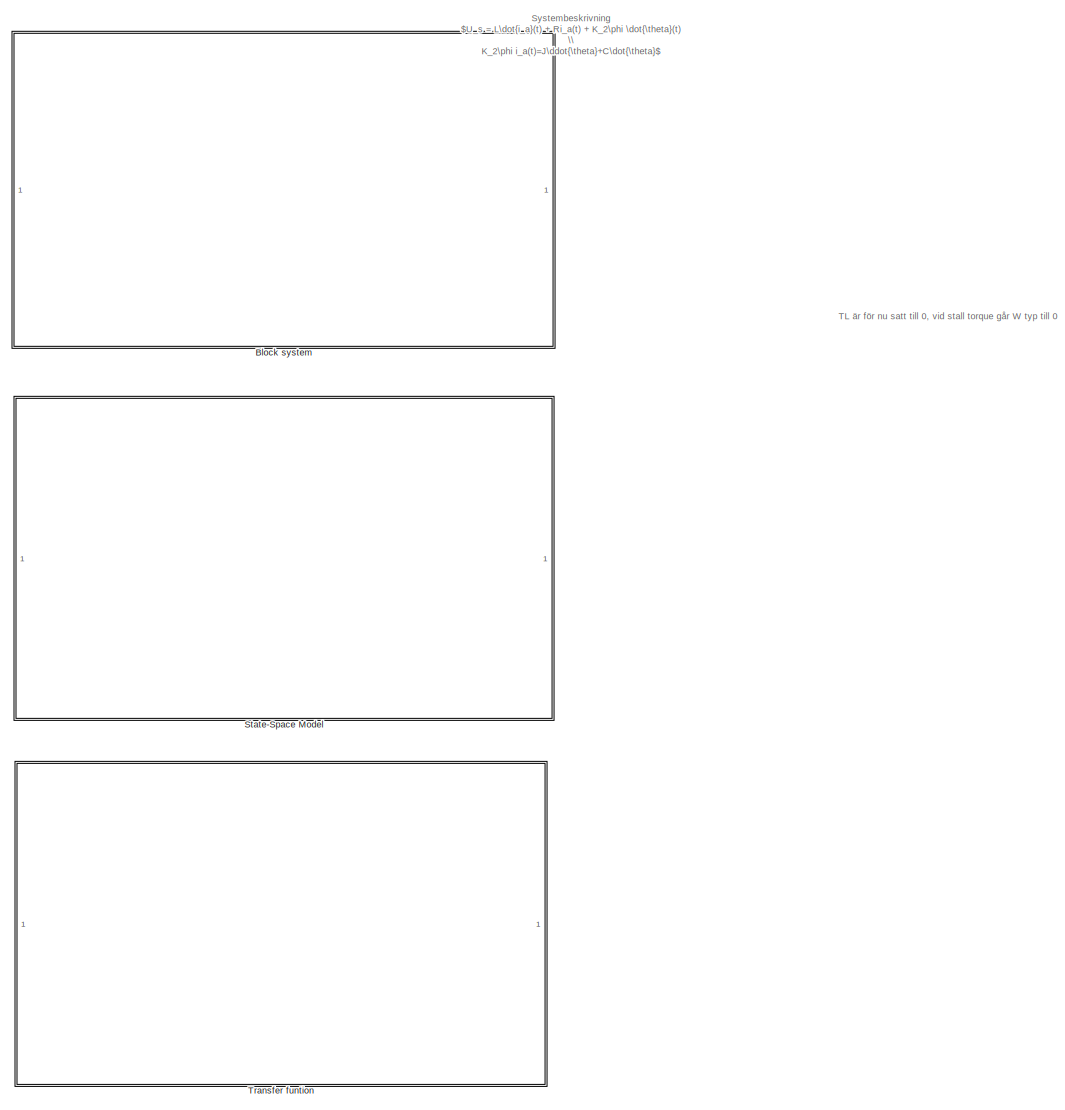
[diagram: root canvas - part 1/5, full width, top band]
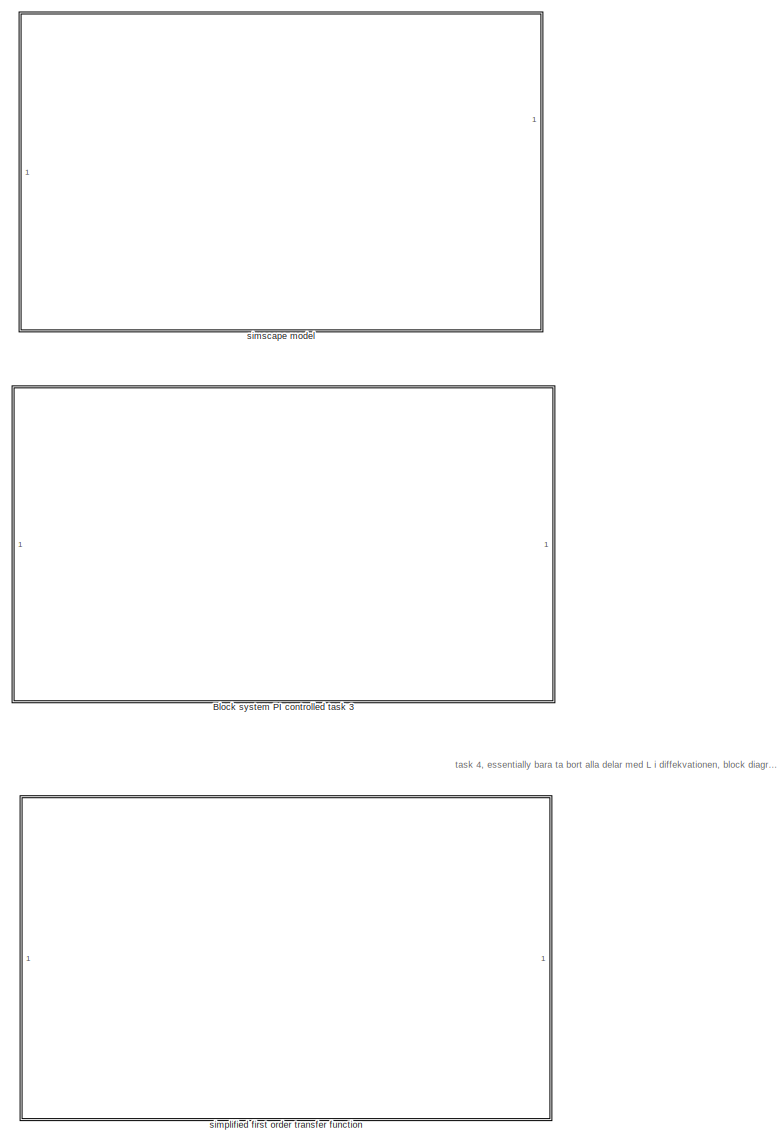
[diagram: root canvas - part 2/5, top center region]
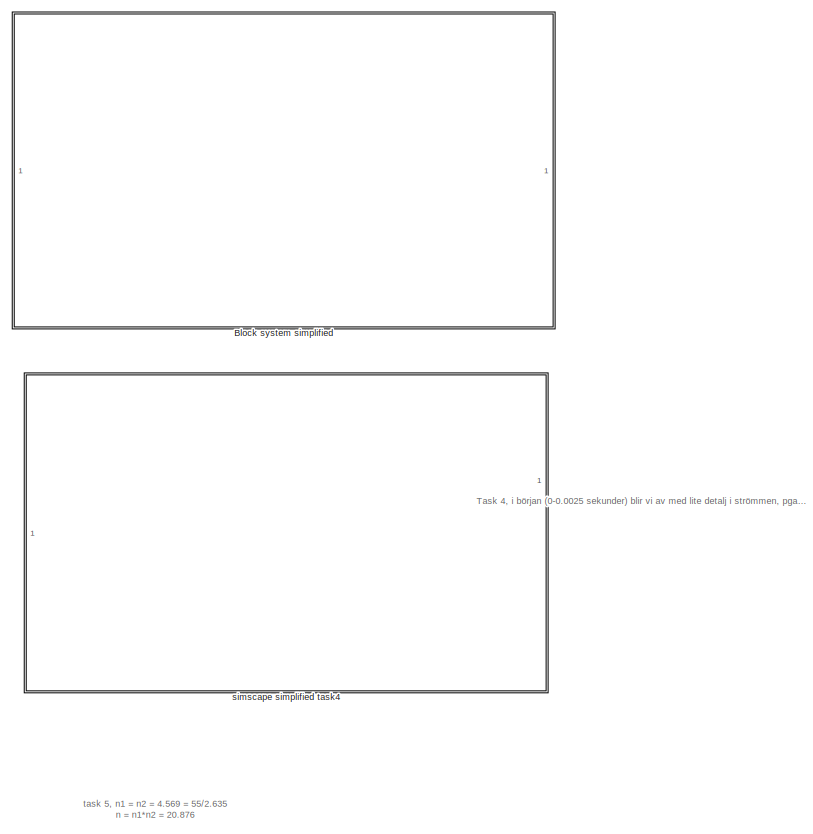
[diagram: root canvas - part 3/5, full width, middle band]
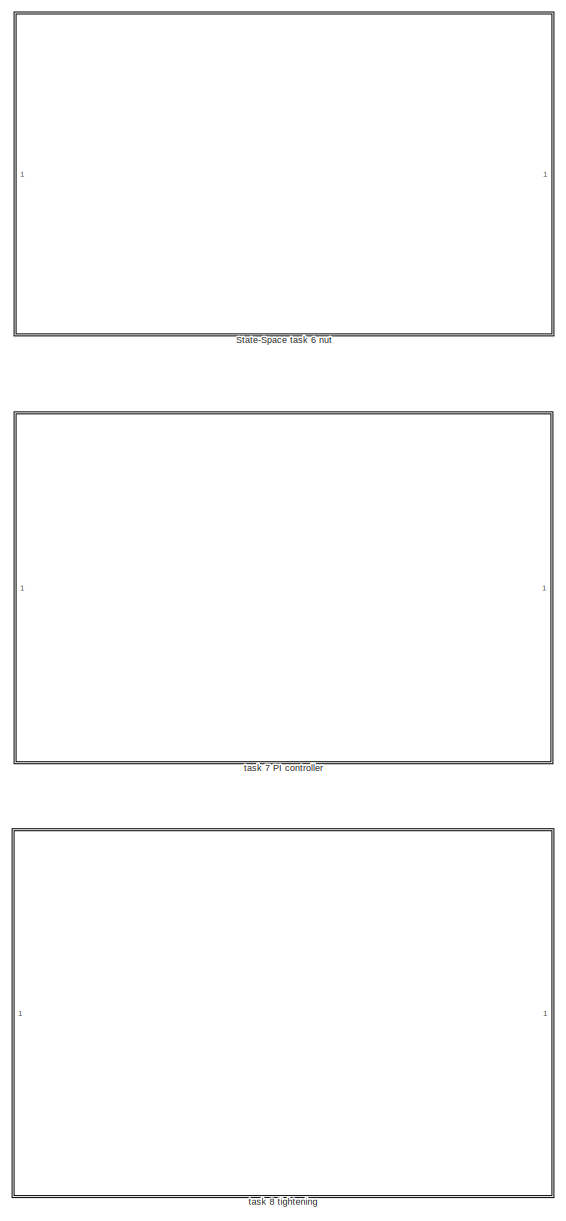
[diagram: root canvas - part 4/5, bottom left region]
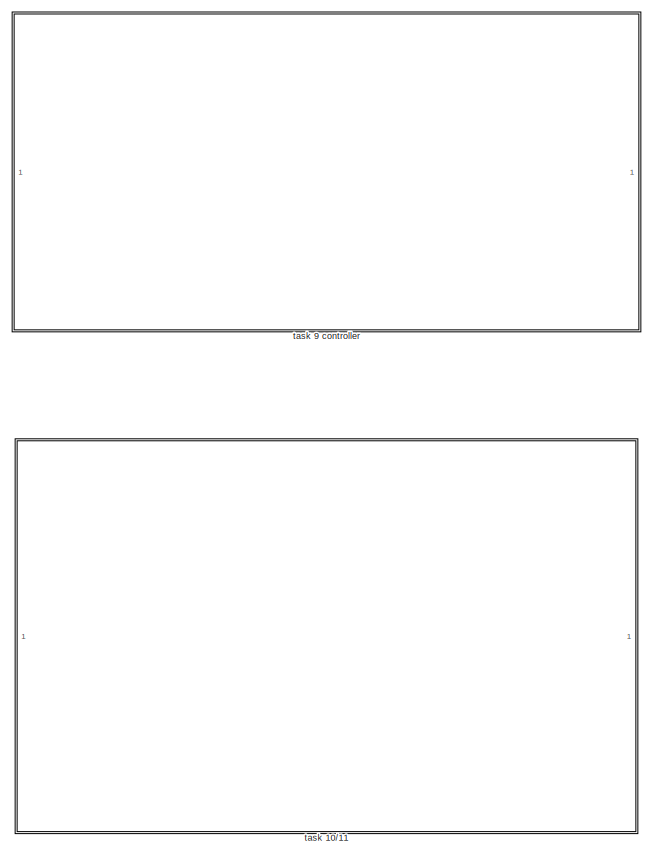
[diagram: root canvas - part 5/5, bottom left region]
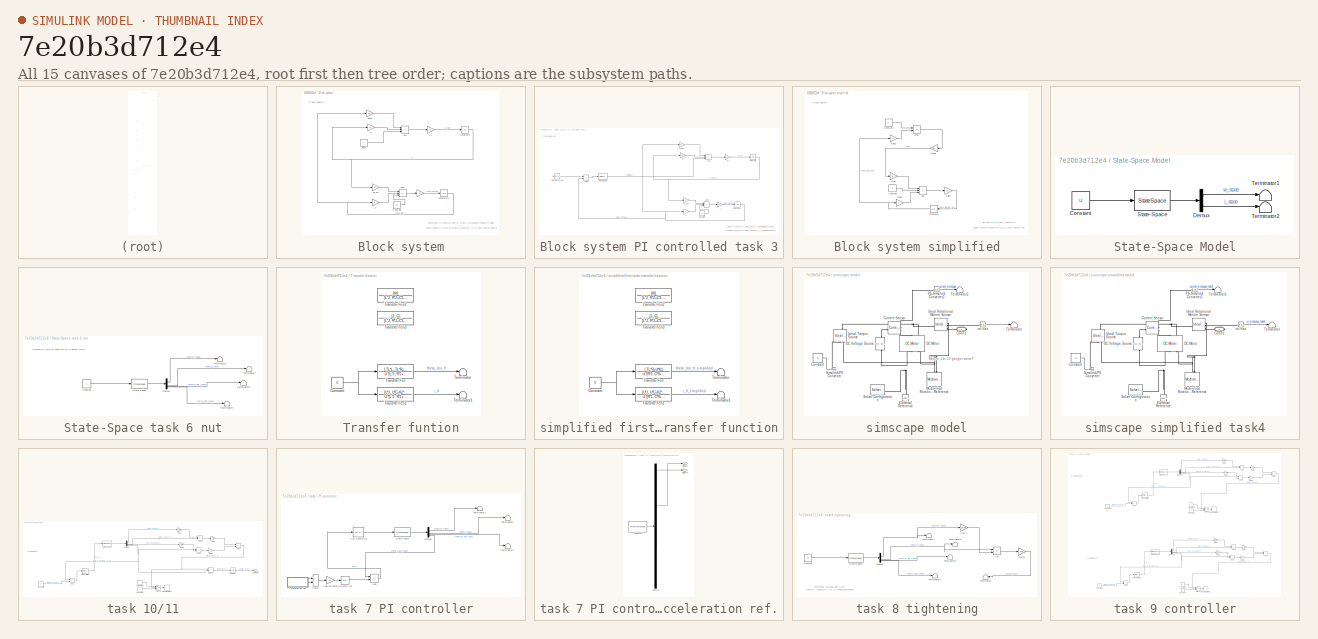
[diagram: thumbnail index - all 15 canvases of the model, root first then tree order]
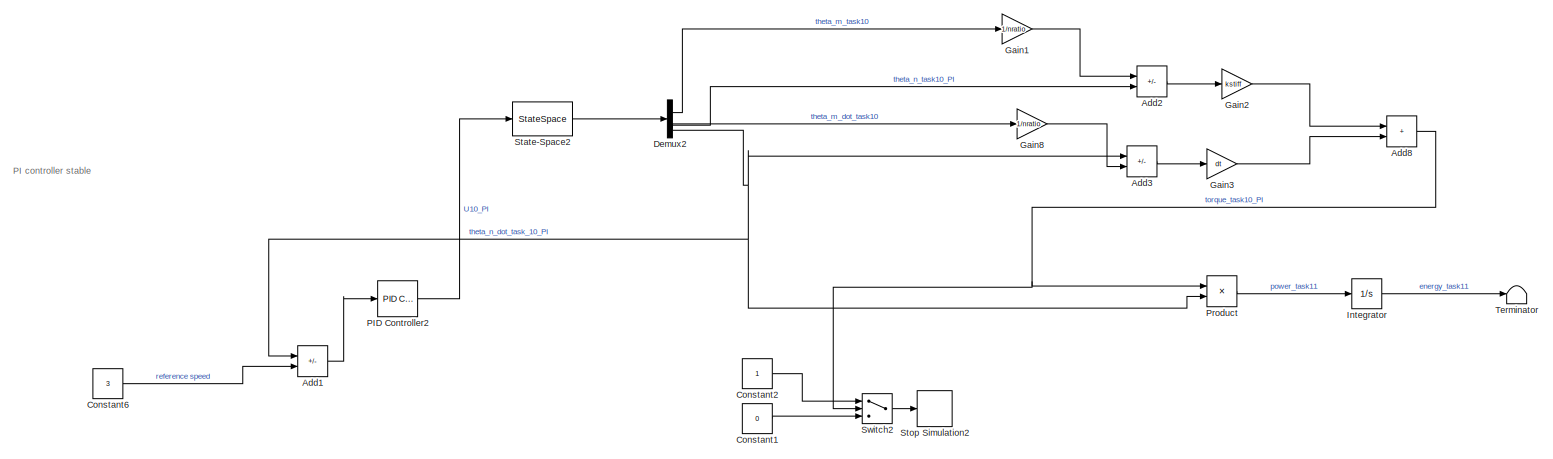
[diagram: task 10/11 - part 1/1, most of the canvas]
MODEL slx_7e20b3d712e4
KIND model
CONFIG AbsTol = auto
CONFIG EnableMultiTasking = off
CONFIG FixedStep = auto
CONFIG MaxStep = auto
CONFIG MinStep = auto
CONFIG RelTol = 1e-3
CONFIG SampleTimeConstraint = Unconstrained
CONFIG SolverName = VariableStepAuto
CONFIG StartTime = 0.0
CONFIG StopTime = 10
WORKSPACE source: MATLAB code (in-file)
WORKSPACE R = 0.22
WORKSPACE K2 = 2.53*10^(-3)*(60/(2*pi))  (= 0.0241597203613)
WORKSPACE C = 7.72*10^(-7)*(60/(2*pi))  (= 7.37205696402e-06)
WORKSPACE L = 73*10^(-6)  (= 7.3e-05)
WORKSPACE J = 1.3*10^(-5)  (= 1.3e-05)
WORKSPACE Kt = 24.2*10^(-3)  (= 0.0242)
WORKSPACE U = 24
WORKSPACE TL = 0
WORKSPACE reference_rpm_task3 = 12
WORKSPACE dj = 1.5
WORKSPACE dt = 1.5
WORKSPACE kstiff = 739
WORKSPACE Jn = 6.5*10^(-8)  (= 6.5e-08)
WORKSPACE n1ratio = 4.569
WORKSPACE nratio = n1ratio*n1ratio  (= 20.875761)
WORKSPACE Jg1 = 6.5*10^(-8)  (= 6.5e-08)
WORKSPACE Jg2 = 5.3*10^(-8)  (= 5.3e-08)
WORKSPACE J1 = J+Jg1+Jg2/nratio  (= 1.30675388296e-05)
WORKSPACE J2 = 533*10^(-8)  (= 5.33e-06)
WORKSPACE Kf = 7.72*10^(-7)*(60/(2*pi))  (= 7.37205696402e-06)
WORKSPACE Amatr = [0, 0, 1, 0
WORKSPACE code: 0, 0, 0, 1;
WORKSPACE code: -kstiff/(J1*nratio^2), kstiff/(J1*nratio), -dt/(J1*nratio^2) - (Kt*K2)/(R*J1) - Kf/J1, dt/(J1*nratio);
WORKSPACE code: kstiff/(J2*nratio), -kstiff/J2, dt/(J2*nratio), -dt/J2 - dj/J2];
WORKSPACE code: Bmatr = [0; 0; Kt/(R*J1); 0];
WORKSPACE Cmatr = eye(4)
WORKSPACE code: Dmatr = [0;0;0;0];
WORKSPACE kj = 6.895*10^7  (= 68950000)
WORKSPACE factor = (1.25*10^(-3))^2 / (4*pi^2)  (= 3.95785873603e-08)
WORKSPACE Amatr8 = [0, 0, 1, 0
WORKSPACE code: 0, 0, 0, 1;
WORKSPACE code: -kstiff/(J1*nratio^2), kstiff/(J1*nratio), -dt/(J1*nratio^2) - (Kt*K2)/(R*J1) - Kf/J1, dt/(J1*nratio);
WORKSPACE code: kstiff/(J2*nratio), -kstiff/(J2) - kj*factor/(J2), dt/(nratio*J2), -dt/(J2) - dj/J2];
WORKSPACE code: Bmatr8 = [0; 0; Kt/(R*J1); 0];
WORKSPACE Cmatr8 = eye(4)
WORKSPACE code: Dmatr8 = [0;0;0;0];
WORKSPACE mu10 = 0.125
WORKSPACE rs10 = 6.466*10^(-3)  (= 0.006466)
WORKSPACE factorsqrt = (1.25*10^(-3)) / (2*pi)  (= 0.000198943678865)
WORKSPACE Amatr10 = [0, 0, 1, 0
WORKSPACE code: 0, 0, 0, 1;
WORKSPACE code: -kstiff/(J1*nratio^2), kstiff/(J1*nratio), -dt/(J1*nratio^2) - (Kt*K2)/(R*J1) - Kf/J1, dt/(J1*nratio);
WORKSPACE code: kstiff/(J2*nratio), -kstiff/(J2) - kj*factor/(J2) - (mu10*kj*factorsqrt*rs10)/(J2), dt/(nratio*J2), -dt/(J2) - dj/J2];
WORKSPACE code: Bmatr10 = [0; 0; Kt/(R*J1); 0];
WORKSPACE Cmatr10 = eye(4)
WORKSPACE code: Dmatr10 = [0;0;0;0];
BLOCK [SubSystem] Block system
BLOCK [SubSystem] Block system PI controlled task 3
BLOCK [Gain] Block system PI controlled task 3/1//L
  Gain = 1/L
BLOCK [Sum] Block system PI controlled task 3/Add
  IconShape = rectangular
  Inputs = --+
BLOCK [Sum] Block system PI controlled task 3/Add1
  IconShape = rectangular
  Inputs = +--
BLOCK [Sum] Block system PI controlled task 3/Add2
  IconShape = rectangular
  Inputs = +-
BLOCK [Gain] Block system PI controlled task 3/C
  Gain = C
BLOCK [Constant] Block system PI controlled task 3/Constant
  Value = TL
BLOCK [Integrator] Block system PI controlled task 3/Integrator
BLOCK [Integrator] Block system PI controlled task 3/Integrator1
BLOCK [Gain] Block system PI controlled task 3/J
  Gain = 1/J
BLOCK [Gain] Block system PI controlled task 3/K2_phi
  Gain = Kt
BLOCK [Gain] Block system PI controlled task 3/K2phi
  Gain = K2
BLOCK [Reference] Block system PI controlled task 3/PID Controller  REF=slpidlib/PID Controller
  LibrarySourceBlock = simulink/Continuous/PID Controller
  SourceBlock = slpidlib/PID Controller
  SourceType = PID 1dof
BLOCK [Gain] Block system PI controlled task 3/R
  Gain = R
BLOCK [Constant] Block system PI controlled task 3/reference_rpm
  Value = reference_rpm_task3
BLOCK [SubSystem] Block system simplified
BLOCK [Sum] Block system simplified/Add
  IconShape = rectangular
  Inputs = +--
BLOCK [Sum] Block system simplified/Add1
  IconShape = rectangular
  Inputs = +-
BLOCK [Constant] Block system simplified/Constant
  Value = TL
BLOCK [Constant] Block system simplified/Constant1
  Value = U
BLOCK [Gain] Block system simplified/Gain
  Gain = Kt
BLOCK [Gain] Block system simplified/Gain1
  Gain = C
BLOCK [Gain] Block system simplified/Gain2
  Gain = 1/J
BLOCK [Gain] Block system simplified/Gain3
  Gain = K2
BLOCK [Gain] Block system simplified/Gain4
  Gain = 1/R
BLOCK [Integrator] Block system simplified/Integrator
BLOCK [Gain] Block system/1//L
  Gain = 1/L
BLOCK [Sum] Block system/Add
  IconShape = rectangular
  Inputs = --+
BLOCK [Sum] Block system/Add1
  IconShape = rectangular
  Inputs = +--
BLOCK [Gain] Block system/C
  Gain = C
BLOCK [Constant] Block system/Constant
  Value = TL
BLOCK [Integrator] Block system/Integrator
BLOCK [Integrator] Block system/Integrator1
BLOCK [Gain] Block system/J
  Gain = 1/J
BLOCK [Gain] Block system/K2_phi
  Gain = Kt
BLOCK [Gain] Block system/K2phi
  Gain = K2
BLOCK [Gain] Block system/R
  Gain = R
BLOCK [Constant] Block system/input
  Value = U
BLOCK [SubSystem] State-Space Model
BLOCK [Constant] State-Space Model/Constant
  Value = U
BLOCK [Demux] State-Space Model/Demux
  Outputs = 2
BLOCK [StateSpace] State-Space Model/State-Space
  A = [-C/J, Kt/J; -K2/L, -R/L]
  B = [-TL/(J*U); 1/L]
  C = [1, 0; 0 1]
  D = [0;0]
  InitialCondition = 0
BLOCK [Terminator] State-Space Model/Terminator1
BLOCK [Terminator] State-Space Model/Terminator2
BLOCK [SubSystem] State-Space task 6 nut
BLOCK [Constant] State-Space task 6 nut/Constant
BLOCK [Demux] State-Space task 6 nut/Demux
BLOCK [StateSpace] State-Space task 6 nut/State-Space
  A = Amatr
  B = Bmatr
  C = Cmatr
  D = Dmatr
  InitialCondition = 0
BLOCK [Terminator] State-Space task 6 nut/Terminator1
BLOCK [Terminator] State-Space task 6 nut/Terminator2
BLOCK [Terminator] State-Space task 6 nut/Terminator3
BLOCK [Terminator] State-Space task 6 nut/Terminator4
BLOCK [SubSystem] Transfer funtion
BLOCK [Constant] Transfer funtion/Constant
  Value = U
BLOCK [Terminator] Transfer funtion/Terminator
BLOCK [Terminator] Transfer funtion/Terminator1
BLOCK [TransferFcn] Transfer funtion/Transfer Fcn
  Denominator = U.*[L*J, R*J+C*L, C*R+K2*Kt]
  Numerator = [-TL*L,-TL*R+U*Kt]
BLOCK [TransferFcn] Transfer funtion/Transfer Fcn1
  Denominator = U.*[L*J, R*J+C*L, C*R+K2*Kt]
  Numerator = [U*J, U*C+K2*TL]
BLOCK [TransferFcn] Transfer funtion/Transfer Fcn2
  Commented = on
  Denominator = [L*J, R*J+C*L, C*R+K2*Kt]
  Numerator = [Kt]
BLOCK [TransferFcn] Transfer funtion/Transfer Fcn3
  Commented = on
  Denominator = [L*J, R*J+C*L, C*R+K2*Kt]
  Numerator = [J, C]
BLOCK [SubSystem] simplified first order transfer function
BLOCK [Constant] simplified first order transfer function/Constant
  Value = U
BLOCK [Terminator] simplified first order transfer function/Terminator
BLOCK [Terminator] simplified first order transfer function/Terminator1
BLOCK [TransferFcn] simplified first order transfer function/Transfer Fcn
  Denominator = U.*[R*J, C*R+K2*Kt]
  Numerator = [-TL*R+U*Kt]
BLOCK [TransferFcn] simplified first order transfer function/Transfer Fcn1
  Denominator = U.*[R*J, C*R+K2*Kt]
  Numerator = [U*J, U*C+K2*TL]
BLOCK [TransferFcn] simplified first order transfer function/Transfer Fcn2
  Commented = on
  Denominator = [L*J, R*J+C*L, C*R+K2*Kt]
  Numerator = [Kt]
BLOCK [TransferFcn] simplified first order transfer function/Transfer Fcn3
  Commented = on
  Denominator = [L*J, R*J+C*L, C*R+K2*Kt]
  Numerator = [J, C]
BLOCK [SubSystem] simscape model
BLOCK [PMIOPort] simscape model/Conn1
  Side = Right
BLOCK [Constant] simscape model/Constant
  Value = -TL
BLOCK [Reference] simscape model/Current Sensor  REF=fl_lib/Electrical/Electrical Sensors/Current Sensor
  SourceBlock = fl_lib/Electrical/Electrical Sensors/Current Sensor
  SourceType = Current Sensor
BLOCK [Reference] simscape model/DC Motor  REF=ee_lib/Electromechanical/Brushed Motors/DC Motor
  NameLocation = right
  SourceBlock = ee_lib/Electromechanical/Brushed Motors/DC Motor
  SourceType = DC Motor
BLOCK [Reference] simscape model/DC Voltage Source  REF=fl_lib/Electrical/Electrical Sources/DC Voltage Source
  NameLocation = right
  SourceBlock = fl_lib/Electrical/Electrical Sources/DC Voltage Source
  SourceType = DC Voltage Source
BLOCK [Reference] simscape model/Electrical Reference  REF=fl_lib/Electrical/Electrical Elements/Electrical Reference
  NameLocation = right
  SourceBlock = fl_lib/Electrical/Electrical Elements/Electrical Reference
  SourceType = Electrical Reference
BLOCK [Reference] simscape model/Ideal Rotational Motion Sensor  REF=fl_lib/Mechanical/Mechanical Sensors/Ideal Rotational
Motion Sensor
  SourceBlock = fl_lib/Mechanical/Mechanical Sensors/Ideal Rotational\nMotion Sensor
  SourceType = Ideal Rotational\nMotion Sensor
BLOCK [Reference] simscape model/Ideal Torque Source  REF=fl_lib/Mechanical/Mechanical Sources/Ideal Torque Source
  NameLocation = right
  SourceBlock = fl_lib/Mechanical/Mechanical Sources/Ideal Torque Source
  SourceType = Ideal Torque Source
BLOCK [Reference] simscape model/Mechanical Rotational Reference  REF=fl_lib/Mechanical/Rotational Elements/Mechanical
Rotational Reference
  NameLocation = right
  SourceBlock = fl_lib/Mechanical/Rotational Elements/Mechanical\nRotational Reference
  SourceType = Mechanical\nRotational Reference
BLOCK [Reference] simscape model/PS-Simulink Converter2  REF=nesl_utility/PS-Simulink
Converter
  SourceBlock = nesl_utility/PS-Simulink\nConverter
  SourceType = PS-Simulink\nConverter
BLOCK [Reference] simscape model/Simulink-PS Converter  REF=nesl_utility/Simulink-PS
Converter
  SourceBlock = nesl_utility/Simulink-PS\nConverter
  SourceType = Simulink-PS\nConverter
BLOCK [Reference] simscape model/Solver Configuration  REF=nesl_utility/Solver
Configuration
  SourceBlock = nesl_utility/Solver\nConfiguration
  SourceType = Solver\nConfiguration
BLOCK [Terminator] simscape model/Terminator
BLOCK [Terminator] simscape model/Terminator2
BLOCK [Reference] simscape model/rot has  REF=nesl_utility/PS-Simulink
Converter
  SourceBlock = nesl_utility/PS-Simulink\nConverter
  SourceType = PS-Simulink\nConverter
BLOCK [SubSystem] simscape simplified task4
BLOCK [PMIOPort] simscape simplified task4/Conn1
  Side = Right
BLOCK [Constant] simscape simplified task4/Constant
  Value = -TL
BLOCK [Reference] simscape simplified task4/Current Sensor  REF=fl_lib/Electrical/Electrical Sensors/Current Sensor
  SourceBlock = fl_lib/Electrical/Electrical Sensors/Current Sensor
  SourceType = Current Sensor
BLOCK [Reference] simscape simplified task4/DC Motor  REF=ee_lib/Electromechanical/Brushed Motors/DC Motor
  NameLocation = right
  SourceBlock = ee_lib/Electromechanical/Brushed Motors/DC Motor
  SourceType = DC Motor
BLOCK [Reference] simscape simplified task4/DC Voltage Source  REF=fl_lib/Electrical/Electrical Sources/DC Voltage Source
  NameLocation = right
  SourceBlock = fl_lib/Electrical/Electrical Sources/DC Voltage Source
  SourceType = DC Voltage Source
BLOCK [Reference] simscape simplified task4/Electrical Reference  REF=fl_lib/Electrical/Electrical Elements/Electrical Reference
  NameLocation = right
  SourceBlock = fl_lib/Electrical/Electrical Elements/Electrical Reference
  SourceType = Electrical Reference
BLOCK [Reference] simscape simplified task4/Ideal Rotational Motion Sensor  REF=fl_lib/Mechanical/Mechanical Sensors/Ideal Rotational
Motion Sensor
  SourceBlock = fl_lib/Mechanical/Mechanical Sensors/Ideal Rotational\nMotion Sensor
  SourceType = Ideal Rotational\nMotion Sensor
BLOCK [Reference] simscape simplified task4/Ideal Torque Source  REF=fl_lib/Mechanical/Mechanical Sources/Ideal Torque Source
  NameLocation = right
  SourceBlock = fl_lib/Mechanical/Mechanical Sources/Ideal Torque Source
  SourceType = Ideal Torque Source
BLOCK [Reference] simscape simplified task4/Mechanical Rotational Reference  REF=fl_lib/Mechanical/Rotational Elements/Mechanical
Rotational Reference
  NameLocation = right
  SourceBlock = fl_lib/Mechanical/Rotational Elements/Mechanical\nRotational Reference
  SourceType = Mechanical\nRotational Reference
BLOCK [Reference] simscape simplified task4/PS-Simulink Converter2  REF=nesl_utility/PS-Simulink
Converter
  SourceBlock = nesl_utility/PS-Simulink\nConverter
  SourceType = PS-Simulink\nConverter
BLOCK [Reference] simscape simplified task4/Simulink-PS Converter  REF=nesl_utility/Simulink-PS
Converter
  SourceBlock = nesl_utility/Simulink-PS\nConverter
  SourceType = Simulink-PS\nConverter
BLOCK [Reference] simscape simplified task4/Solver Configuration  REF=nesl_utility/Solver
Configuration
  SourceBlock = nesl_utility/Solver\nConfiguration
  SourceType = Solver\nConfiguration
BLOCK [Terminator] simscape simplified task4/Terminator
BLOCK [Terminator] simscape simplified task4/Terminator2
BLOCK [Reference] simscape simplified task4/rot has  REF=nesl_utility/PS-Simulink
Converter
  SourceBlock = nesl_utility/PS-Simulink\nConverter
  SourceType = PS-Simulink\nConverter
BLOCK [SubSystem] task 10//11
  Commented = on
BLOCK [Sum] task 10//11/Add1
  IconShape = rectangular
  Inputs = -+
BLOCK [Sum] task 10//11/Add2
  IconShape = rectangular
  Inputs = +-
BLOCK [Sum] task 10//11/Add3
  IconShape = rectangular
  Inputs = -+
BLOCK [Sum] task 10//11/Add8
  IconShape = rectangular
BLOCK [Constant] task 10//11/Constant1
  Value = 0
BLOCK [Constant] task 10//11/Constant2
BLOCK [Constant] task 10//11/Constant6
  Value = 3
BLOCK [Demux] task 10//11/Demux2
BLOCK [Gain] task 10//11/Gain1
  Gain = 1/nratio
BLOCK [Gain] task 10//11/Gain2
  Gain = kstiff
BLOCK [Gain] task 10//11/Gain3
  Gain = dt
BLOCK [Gain] task 10//11/Gain8
  Gain = 1/nratio
BLOCK [Integrator] task 10//11/Integrator
BLOCK [Reference] task 10//11/PID Controller2  REF=slpidlib/PID Controller
  LibrarySourceBlock = simulink/Continuous/PID Controller
  SourceBlock = slpidlib/PID Controller
  SourceType = PID 1dof
BLOCK [Product] task 10//11/Product
BLOCK [StateSpace] task 10//11/State-Space2
  A = Amatr10
  B = Bmatr10
  C = Cmatr10
  D = Dmatr10
  InitialCondition = 0
BLOCK [Stop] task 10//11/Stop Simulation2
BLOCK [Switch] task 10//11/Switch2
  InputSameDT = off
  SaturateOnIntegerOverflow = off
  Threshold = 25
BLOCK [Terminator] task 10//11/Terminator
BLOCK [SubSystem] task 7 PI controller
BLOCK [SubSystem] task 7 PI controller/Acceleration ref.
  ClipboardFcn = sigbuilder_block('clipboard');
  CloseFcn = sigbuilder_block('close');
  ContinueFcn = sigbuilder_block('continue')
  CopyFcn = sigbuilder_block('copy');
  DeleteFcn = sigbuilder_block('delete');
  LoadFcn = sigbuilder_block('load');
  MaskHideContents = on
  ModelCloseFcn = sigbuilder_block('modelClose');
  NameChangeFcn = sigbuilder_block('namechange');
  OpenFcn = sigbuilder_block('open',[214.5 141.75 550.5 399.25 ]);
  PauseFcn = sigbuilder_block('pause')
  PreSaveFcn = sigbuilder_block('preSave');
  StartFcn = sigbuilder_block('start');
  StopFcn = sigbuilder_block('stop');
  Tag = STV Subsys
BLOCK [Demux] task 7 PI controller/Acceleration ref./Demux
  DisplayOption = none
  Outputs = 2
  Tag = STV Demux
BLOCK [FromWorkspace] task 7 PI controller/Acceleration ref./FromWs
  Tag = STV FromWs
  VariableName = tuvar
BLOCK [Outport] task 7 PI controller/Acceleration ref./Signal 1
  Tag = STV Outport
BLOCK [Outport] task 7 PI controller/Acceleration ref./Signal 2
  Port = 2
  Tag = STV Outport
BLOCK [Sum] task 7 PI controller/Add
  IconShape = rectangular
  Inputs = -+
BLOCK [Demux] task 7 PI controller/Demux
BLOCK [Reference] task 7 PI controller/PID Controller  REF=slpidlib/PID Controller
  LibrarySourceBlock = simulink/Continuous/PID Controller
  SourceBlock = slpidlib/PID Controller
  SourceType = PID 1dof
BLOCK [Gain] task 7 PI controller/Scaling factor
  Gain = 15
BLOCK [StateSpace] task 7 PI controller/State-Space
  A = Amatr
  B = Bmatr
  C = Cmatr
  D = Dmatr
  InitialCondition = 0
BLOCK [Sum] task 7 PI controller/Sum2
  IconShape = rectangular
  Inputs = |++
BLOCK [Terminator] task 7 PI controller/Terminator1
BLOCK [Terminator] task 7 PI controller/Terminator2
BLOCK [Terminator] task 7 PI controller/Terminator3
BLOCK [Integrator] task 7 PI controller/Vellocity ref
BLOCK [SubSystem] task 8 tightening
BLOCK [Sum] task 8 tightening/Add
  IconShape = rectangular
  Inputs = +-
BLOCK [Constant] task 8 tightening/Constant
  Value = 24
BLOCK [Demux] task 8 tightening/Demux
BLOCK [Gain] task 8 tightening/Gain
  Gain = 1/nratio
BLOCK [Gain] task 8 tightening/Gain1
  Gain = kstiff
BLOCK [StateSpace] task 8 tightening/State-Space
  A = Amatr8
  B = Bmatr8
  C = Cmatr8
  D = Dmatr8
  InitialCondition = 0
BLOCK [Terminator] task 8 tightening/Terminator
BLOCK [Terminator] task 8 tightening/Terminator1
BLOCK [Terminator] task 8 tightening/Terminator2
BLOCK [Terminator] task 8 tightening/Terminator3
BLOCK [Terminator] task 8 tightening/Terminator4
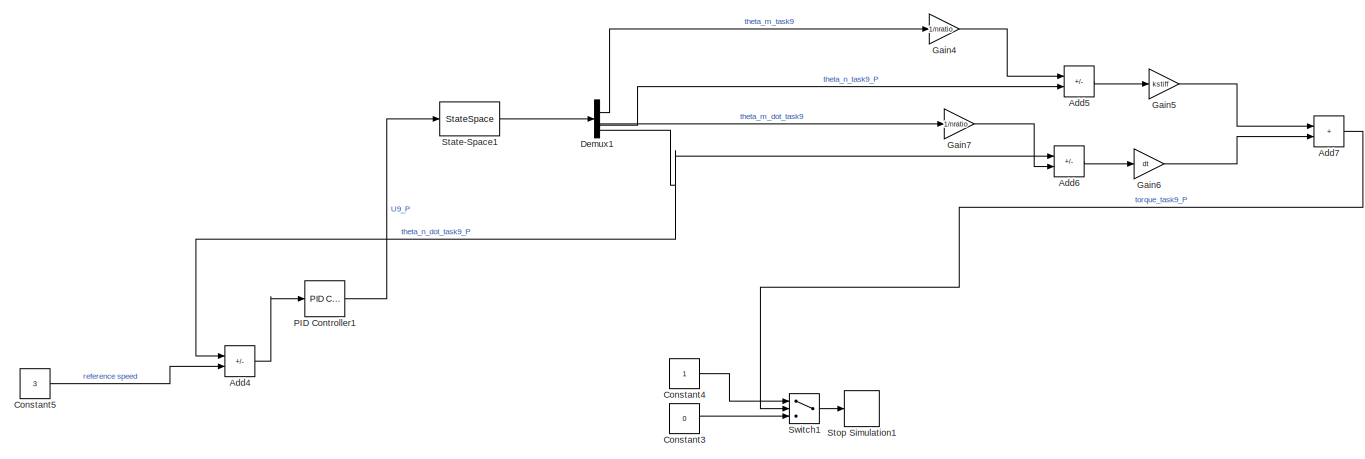
[diagram: task 9 controller - part 1/3, full width, top band]
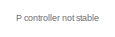
[diagram: task 9 controller - part 2/3, top left region]
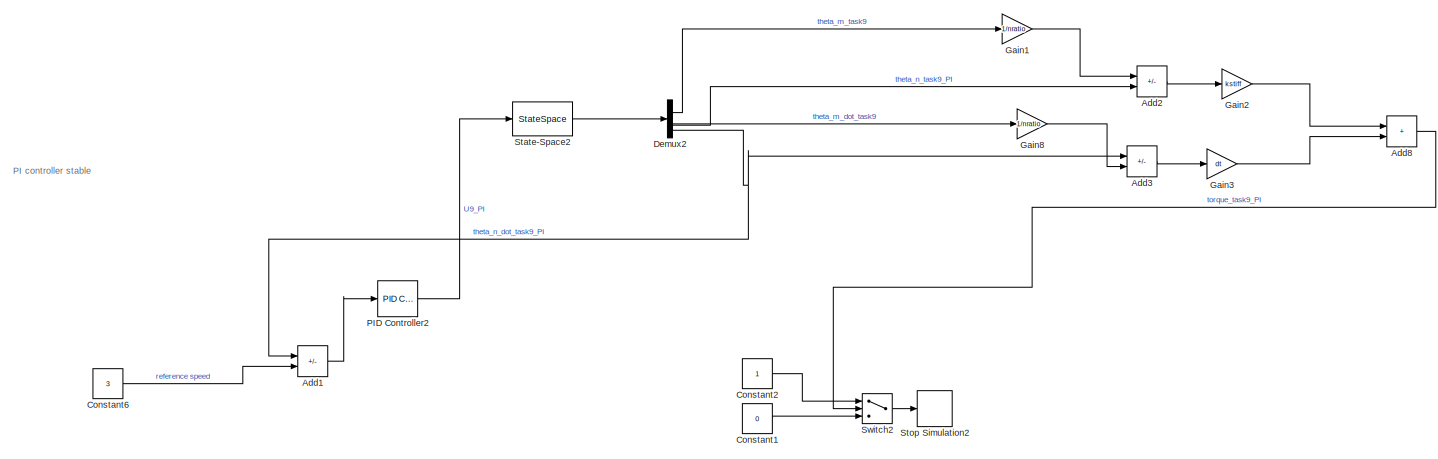
[diagram: task 9 controller - part 3/3, full width, bottom band]
BLOCK [SubSystem] task 9 controller
  Commented = on
BLOCK [Sum] task 9 controller/Add1
  IconShape = rectangular
  Inputs = -+
BLOCK [Sum] task 9 controller/Add2
  IconShape = rectangular
  Inputs = +-
BLOCK [Sum] task 9 controller/Add3
  IconShape = rectangular
  Inputs = -+
BLOCK [Sum] task 9 controller/Add4
  Commented = on
  IconShape = rectangular
  Inputs = -+
BLOCK [Sum] task 9 controller/Add5
  Commented = on
  IconShape = rectangular
  Inputs = +-
BLOCK [Sum] task 9 controller/Add6
  Commented = on
  IconShape = rectangular
  Inputs = -+
BLOCK [Sum] task 9 controller/Add7
  Commented = on
  IconShape = rectangular
BLOCK [Sum] task 9 controller/Add8
  IconShape = rectangular
BLOCK [Constant] task 9 controller/Constant1
  Value = 0
BLOCK [Constant] task 9 controller/Constant2
BLOCK [Constant] task 9 controller/Constant3
  Commented = on
  Value = 0
BLOCK [Constant] task 9 controller/Constant4
  Commented = on
BLOCK [Constant] task 9 controller/Constant5
  Commented = on
  Value = 3
BLOCK [Constant] task 9 controller/Constant6
  Value = 3
BLOCK [Demux] task 9 controller/Demux1
  Commented = on
BLOCK [Demux] task 9 controller/Demux2
BLOCK [Gain] task 9 controller/Gain1
  Gain = 1/nratio
BLOCK [Gain] task 9 controller/Gain2
  Gain = kstiff
BLOCK [Gain] task 9 controller/Gain3
  Gain = dt
BLOCK [Gain] task 9 controller/Gain4
  Commented = on
  Gain = 1/nratio
BLOCK [Gain] task 9 controller/Gain5
  Commented = on
  Gain = kstiff
BLOCK [Gain] task 9 controller/Gain6
  Commented = on
  Gain = dt
BLOCK [Gain] task 9 controller/Gain7
  Commented = on
  Gain = 1/nratio
BLOCK [Gain] task 9 controller/Gain8
  Gain = 1/nratio
BLOCK [Reference] task 9 controller/PID Controller1  REF=slpidlib/PID Controller
  Commented = on
  LibrarySourceBlock = simulink/Continuous/PID Controller
  SourceBlock = slpidlib/PID Controller
  SourceType = PID 1dof
BLOCK [Reference] task 9 controller/PID Controller2  REF=slpidlib/PID Controller
  LibrarySourceBlock = simulink/Continuous/PID Controller
  SourceBlock = slpidlib/PID Controller
  SourceType = PID 1dof
BLOCK [StateSpace] task 9 controller/State-Space1
  A = Amatr8
  B = Bmatr8
  C = Cmatr8
  Commented = on
  D = Dmatr8
  InitialCondition = 0
BLOCK [StateSpace] task 9 controller/State-Space2
  A = Amatr8
  B = Bmatr8
  C = Cmatr8
  D = Dmatr8
  InitialCondition = 0
BLOCK [Stop] task 9 controller/Stop Simulation1
  Commented = on
BLOCK [Stop] task 9 controller/Stop Simulation2
BLOCK [Switch] task 9 controller/Switch1
  Commented = on
  InputSameDT = off
  SaturateOnIntegerOverflow = off
  Threshold = 25
BLOCK [Switch] task 9 controller/Switch2
  InputSameDT = off
  SaturateOnIntegerOverflow = off
  Threshold = 25
ANNOTATION (root): TL är för nu satt till 0, vid stall torque går W typ till 0
ANNOTATION (root): task 4, essentially bara ta bort alla delar med L i diffekvationen, block diagrammet, tf etc
ANNOTATION (root): task 5, n1 = n2 = 4.569 = 55/2.635 n = n1*n2 = 20.876
ANNOTATION (root): Systembeskrivning $U_s = L\dot{i_a}(t) + Ri_a(t) + K_2\phi \dot{\theta}(t) \\ K_2\phi i_a(t)=J\ddot{\theta}+C\dot{\theta}$
ANNOTATION (root): Task 4, i början (0-0.0025 sekunder) blir vi av med lite detalj i strömmen, pga simplifieringen (vi tog bort L)
ANNOTATION Block system: $\dot{i_a}(t)=\frac{1}{L}\left(U-Ri_a(t)-K_2\phi\dot{\theta}(t)\right) \\ \ddot{\theta}(t)=\frac{1}{J}\left(K_2\phi i_a(t)-T_L-C\dot{\theta}\right)$
ANNOTATION Block system: T1 block diagram
ANNOTATION Block system PI controlled task 3: $\dot{i_a}(t)=\frac{1}{L}\left(U-Ri_a(t)-K_2\phi\dot{\theta}(t)\right) \\ \ddot{\theta}(t)=\frac{1}{J}\left(K_2\phi i_a(t)-T_L-C\dot{\theta}\right)$
ANNOTATION Block system PI controlled task 3: T3 block diagram
ANNOTATION Block system simplified: $i=\frac{U-K_{2}\dot{\theta}}{R} \\ \ddot{\theta}=\frac{k_{t}i-T_{L}-C\dot{\theta}}{J}$
ANNOTATION Block system simplified: T1 block diagram
ANNOTATION State-Space task 6 nut: Värdena blir konstigt negativa? kolla igenom varför
ANNOTATION simscape model: Motorn, J är 10 gånger större?
ANNOTATION task 10//11: PI controller stable
ANNOTATION task 8 tightening: momentet vid hastighet 0 blir (theta_2 - theta_1/n ) * K_t (fjäderkonstanten)
ANNOTATION task 9 controller: P controller not stable
ANNOTATION task 9 controller: PI controller stable
LINE Block system PI controlled task 3/1//L:1 -> Block system PI controlled task 3/Integrator:1
LINE Block system PI controlled task 3/Add1:1 -> Block system PI controlled task 3/J:1
LINE Block system PI controlled task 3/Add2:1 -> Block system PI controlled task 3/PID Controller:1
LINE Block system PI controlled task 3/Add:1 -> Block system PI controlled task 3/1//L:1
LINE Block system PI controlled task 3/C:1 -> Block system PI controlled task 3/Add1:2
LINE Block system PI controlled task 3/Constant:1 -> Block system PI controlled task 3/Add1:3
NET Block system PI controlled task 3/Integrator1:1 -> Block system PI controlled task 3/Add2:2, Block system PI controlled task 3/C:1, Block system PI controlled task 3/K2phi:1
NET Block system PI controlled task 3/Integrator:1 -> Block system PI controlled task 3/K2_phi:1, Block system PI controlled task 3/R:1
LINE Block system PI controlled task 3/J:1 -> Block system PI controlled task 3/Integrator1:1
LINE Block system PI controlled task 3/K2_phi:1 -> Block system PI controlled task 3/Add1:1
LINE Block system PI controlled task 3/K2phi:1 -> Block system PI controlled task 3/Add:1
LINE Block system PI controlled task 3/PID Controller:1 -> Block system PI controlled task 3/Add:3
LINE Block system PI controlled task 3/R:1 -> Block system PI controlled task 3/Add:2
LINE Block system PI controlled task 3/reference_rpm:1 -> Block system PI controlled task 3/Add2:1
LINE Block system simplified/Add1:1 -> Block system simplified/Gain4:1
LINE Block system simplified/Add:1 -> Block system simplified/Gain2:1
LINE Block system simplified/Constant1:1 -> Block system simplified/Add1:1
LINE Block system simplified/Constant:1 -> Block system simplified/Add:2
LINE Block system simplified/Gain1:1 -> Block system simplified/Add:3
LINE Block system simplified/Gain2:1 -> Block system simplified/Integrator:1
LINE Block system simplified/Gain3:1 -> Block system simplified/Add1:2
LINE Block system simplified/Gain4:1 -> Block system simplified/Gain:1
LINE Block system simplified/Gain:1 -> Block system simplified/Add:1
NET Block system simplified/Integrator:1 -> Block system simplified/Gain1:1, Block system simplified/Gain3:1
LINE Block system/1//L:1 -> Block system/Integrator:1
LINE Block system/Add1:1 -> Block system/J:1
LINE Block system/Add:1 -> Block system/1//L:1
LINE Block system/C:1 -> Block system/Add1:2
LINE Block system/Constant:1 -> Block system/Add1:3
NET Block system/Integrator1:1 -> Block system/C:1, Block system/K2phi:1
NET Block system/Integrator:1 -> Block system/K2_phi:1, Block system/R:1
LINE Block system/J:1 -> Block system/Integrator1:1
LINE Block system/K2_phi:1 -> Block system/Add1:1
LINE Block system/K2phi:1 -> Block system/Add:1
LINE Block system/R:1 -> Block system/Add:2
LINE Block system/input:1 -> Block system/Add:3
LINE State-Space Model/Constant:1 -> State-Space Model/State-Space:1
LINE State-Space Model/Demux:1 -> State-Space Model/Terminator1:1
LINE State-Space Model/Demux:2 -> State-Space Model/Terminator2:1
LINE State-Space Model/State-Space:1 -> State-Space Model/Demux:1
LINE State-Space task 6 nut/Constant:1 -> State-Space task 6 nut/State-Space:1
LINE State-Space task 6 nut/Demux:1 -> State-Space task 6 nut/Terminator1:1
LINE State-Space task 6 nut/Demux:2 -> State-Space task 6 nut/Terminator2:1
LINE State-Space task 6 nut/Demux:3 -> State-Space task 6 nut/Terminator3:1
LINE State-Space task 6 nut/Demux:4 -> State-Space task 6 nut/Terminator4:1
LINE State-Space task 6 nut/State-Space:1 -> State-Space task 6 nut/Demux:1
NET Transfer funtion/Constant:1 -> Transfer funtion/Transfer Fcn1:1, Transfer funtion/Transfer Fcn:1
LINE Transfer funtion/Transfer Fcn1:1 -> Transfer funtion/Terminator1:1
LINE Transfer funtion/Transfer Fcn:1 -> Transfer funtion/Terminator:1
NET simplified first order transfer function/Constant:1 -> simplified first order transfer function/Transfer Fcn1:1, simplified first order transfer function/Transfer Fcn:1
LINE simplified first order transfer function/Transfer Fcn1:1 -> simplified first order transfer function/Terminator1:1
LINE simplified first order transfer function/Transfer Fcn:1 -> simplified first order transfer function/Terminator:1
LINE simscape model/Constant:1 -> simscape model/Simulink-PS Converter:1
LINE simscape model/PS-Simulink Converter2:1 -> simscape model/Terminator2:1
LINE simscape model/rot has:1 -> simscape model/Terminator:1
LINE simscape simplified task4/Constant:1 -> simscape simplified task4/Simulink-PS Converter:1
LINE simscape simplified task4/PS-Simulink Converter2:1 -> simscape simplified task4/Terminator2:1
LINE simscape simplified task4/rot has:1 -> simscape simplified task4/Terminator:1
LINE task 10//11/Add1:1 -> task 10//11/PID Controller2:1
LINE task 10//11/Add2:1 -> task 10//11/Gain2:1
LINE task 10//11/Add3:1 -> task 10//11/Gain3:1
NET task 10//11/Add8:1 -> task 10//11/Product:1, task 10//11/Switch2:2
LINE task 10//11/Constant1:1 -> task 10//11/Switch2:3
LINE task 10//11/Constant2:1 -> task 10//11/Switch2:1
LINE task 10//11/Constant6:1 -> task 10//11/Add1:2
LINE task 10//11/Demux2:1 -> task 10//11/Gain1:1
LINE task 10//11/Demux2:2 -> task 10//11/Add2:2
LINE task 10//11/Demux2:3 -> task 10//11/Gain8:1
NET task 10//11/Demux2:4 -> task 10//11/Add1:1, task 10//11/Add3:1, task 10//11/Product:2
LINE task 10//11/Gain1:1 -> task 10//11/Add2:1
LINE task 10//11/Gain2:1 -> task 10//11/Add8:1
LINE task 10//11/Gain3:1 -> task 10//11/Add8:2
LINE task 10//11/Gain8:1 -> task 10//11/Add3:2
LINE task 10//11/Integrator:1 -> task 10//11/Terminator:1
LINE task 10//11/PID Controller2:1 -> task 10//11/State-Space2:1
LINE task 10//11/Product:1 -> task 10//11/Integrator:1
LINE task 10//11/State-Space2:1 -> task 10//11/Demux2:1
LINE task 10//11/Switch2:1 -> task 10//11/Stop Simulation2:1
LINE task 7 PI controller/Acceleration ref.:1 -> task 7 PI controller/Sum2:1
LINE task 7 PI controller/Acceleration ref.:2 -> task 7 PI controller/Sum2:2
LINE task 7 PI controller/Add:1 -> task 7 PI controller/PID Controller:1
LINE task 7 PI controller/Demux:1 -> task 7 PI controller/Terminator1:1
LINE task 7 PI controller/Demux:2 -> task 7 PI controller/Terminator2:1
LINE task 7 PI controller/Demux:3 -> task 7 PI controller/Terminator3:1
LINE task 7 PI controller/Demux:4 -> task 7 PI controller/Add:1
LINE task 7 PI controller/PID Controller:1 -> task 7 PI controller/State-Space:1
LINE task 7 PI controller/Scaling factor:1 -> task 7 PI controller/Vellocity ref:1
LINE task 7 PI controller/State-Space:1 -> task 7 PI controller/Demux:1
LINE task 7 PI controller/Sum2:1 -> task 7 PI controller/Scaling factor:1
LINE task 7 PI controller/Vellocity ref:1 -> task 7 PI controller/Add:2
LINE task 8 tightening/Add:1 -> task 8 tightening/Gain1:1
LINE task 8 tightening/Constant:1 -> task 8 tightening/State-Space:1
NET task 8 tightening/Demux:1 -> task 8 tightening/Gain:1, task 8 tightening/Terminator1:1
NET task 8 tightening/Demux:2 -> task 8 tightening/Add:1, task 8 tightening/Terminator2:1
LINE task 8 tightening/Demux:3 -> task 8 tightening/Terminator3:1
LINE task 8 tightening/Demux:4 -> task 8 tightening/Terminator4:1
LINE task 8 tightening/Gain1:1 -> task 8 tightening/Terminator:1
LINE task 8 tightening/Gain:1 -> task 8 tightening/Add:2
LINE task 8 tightening/State-Space:1 -> task 8 tightening/Demux:1
LINE task 9 controller/Add1:1 -> task 9 controller/PID Controller2:1
LINE task 9 controller/Add2:1 -> task 9 controller/Gain2:1
LINE task 9 controller/Add3:1 -> task 9 controller/Gain3:1
LINE task 9 controller/Add4:1 -> task 9 controller/PID Controller1:1
LINE task 9 controller/Add5:1 -> task 9 controller/Gain5:1
LINE task 9 controller/Add6:1 -> task 9 controller/Gain6:1
LINE task 9 controller/Add7:1 -> task 9 controller/Switch1:2
LINE task 9 controller/Add8:1 -> task 9 controller/Switch2:2
LINE task 9 controller/Constant1:1 -> task 9 controller/Switch2:3
LINE task 9 controller/Constant2:1 -> task 9 controller/Switch2:1
LINE task 9 controller/Constant3:1 -> task 9 controller/Switch1:3
LINE task 9 controller/Constant4:1 -> task 9 controller/Switch1:1
LINE task 9 controller/Constant5:1 -> task 9 controller/Add4:2
LINE task 9 controller/Constant6:1 -> task 9 controller/Add1:2
LINE task 9 controller/Demux1:1 -> task 9 controller/Gain4:1
LINE task 9 controller/Demux1:2 -> task 9 controller/Add5:2
LINE task 9 controller/Demux1:3 -> task 9 controller/Gain7:1
NET task 9 controller/Demux1:4 -> task 9 controller/Add4:1, task 9 controller/Add6:1
LINE task 9 controller/Demux2:1 -> task 9 controller/Gain1:1
LINE task 9 controller/Demux2:2 -> task 9 controller/Add2:2
LINE task 9 controller/Demux2:3 -> task 9 controller/Gain8:1
NET task 9 controller/Demux2:4 -> task 9 controller/Add1:1, task 9 controller/Add3:1
LINE task 9 controller/Gain1:1 -> task 9 controller/Add2:1
LINE task 9 controller/Gain2:1 -> task 9 controller/Add8:1
LINE task 9 controller/Gain3:1 -> task 9 controller/Add8:2
LINE task 9 controller/Gain4:1 -> task 9 controller/Add5:1
LINE task 9 controller/Gain5:1 -> task 9 controller/Add7:1
LINE task 9 controller/Gain6:1 -> task 9 controller/Add7:2
LINE task 9 controller/Gain7:1 -> task 9 controller/Add6:2
LINE task 9 controller/Gain8:1 -> task 9 controller/Add3:2
LINE task 9 controller/PID Controller1:1 -> task 9 controller/State-Space1:1
LINE task 9 controller/PID Controller2:1 -> task 9 controller/State-Space2:1
LINE task 9 controller/State-Space1:1 -> task 9 controller/Demux1:1
LINE task 9 controller/State-Space2:1 -> task 9 controller/Demux2:1
LINE task 9 controller/Switch1:1 -> task 9 controller/Stop Simulation1:1
LINE task 9 controller/Switch2:1 -> task 9 controller/Stop Simulation2:1
PLINE simscape model/Conn1:RConn1 -- simscape model/Ideal Rotational Motion Sensor:RConn3
PLINE simscape model/Current Sensor:LConn1 -- simscape model/DC Voltage Source:LConn1
PLINE simscape model/Current Sensor:RConn1 -- simscape model/PS-Simulink Converter2:LConn1
PLINE simscape model/Current Sensor:RConn2 -- simscape model/DC Motor:LConn1
PNET net1: simscape model/DC Motor:LConn2 -- simscape model/Ideal Rotational Motion Sensor:LConn1 -- simscape model/Ideal Torque Source:LConn1
PNET net2: simscape model/DC Motor:RConn1 -- simscape model/DC Voltage Source:RConn1 -- simscape model/Electrical Reference:LConn1 -- simscape model/Solver Configuration:RConn1
PNET net3: simscape model/DC Motor:RConn2 -- simscape model/Ideal Rotational Motion Sensor:RConn1 -- simscape model/Ideal Torque Source:RConn2 -- simscape model/Mechanical Rotational Reference:LConn1
PLINE simscape model/Ideal Rotational Motion Sensor:RConn2 -- simscape model/rot has:LConn1
PLINE simscape model/Ideal Torque Source:RConn1 -- simscape model/Simulink-PS Converter:RConn1
PLINE simscape simplified task4/Conn1:RConn1 -- simscape simplified task4/Ideal Rotational Motion Sensor:RConn3
PLINE simscape simplified task4/Current Sensor:LConn1 -- simscape simplified task4/DC Voltage Source:LConn1
PLINE simscape simplified task4/Current Sensor:RConn1 -- simscape simplified task4/PS-Simulink Converter2:LConn1
PLINE simscape simplified task4/Current Sensor:RConn2 -- simscape simplified task4/DC Motor:LConn1
PNET net4: simscape simplified task4/DC Motor:LConn2 -- simscape simplified task4/Ideal Rotational Motion Sensor:LConn1 -- simscape simplified task4/Ideal Torque Source:LConn1
PNET net5: simscape simplified task4/DC Motor:RConn1 -- simscape simplified task4/DC Voltage Source:RConn1 -- simscape simplified task4/Electrical Reference:LConn1 -- simscape simplified task4/Solver Configuration:RConn1
PNET net6: simscape simplified task4/DC Motor:RConn2 -- simscape simplified task4/Ideal Rotational Motion Sensor:RConn1 -- simscape simplified task4/Ideal Torque Source:RConn2 -- simscape simplified task4/Mechanical Rotational Reference:LConn1
PLINE simscape simplified task4/Ideal Rotational Motion Sensor:RConn2 -- simscape simplified task4/rot has:LConn1
PLINE simscape simplified task4/Ideal Torque Source:RConn1 -- simscape simplified task4/Simulink-PS Converter:RConn1
note: NET lines group one-source signal fan-out (src -> all destinations, sorted); 1:1 wires keep LINE; PNET lines group multi-terminal physical nets as a canonical sorted terminal list (undirected conserving connections); 2-terminal nets keep the pairwise PLINE form
